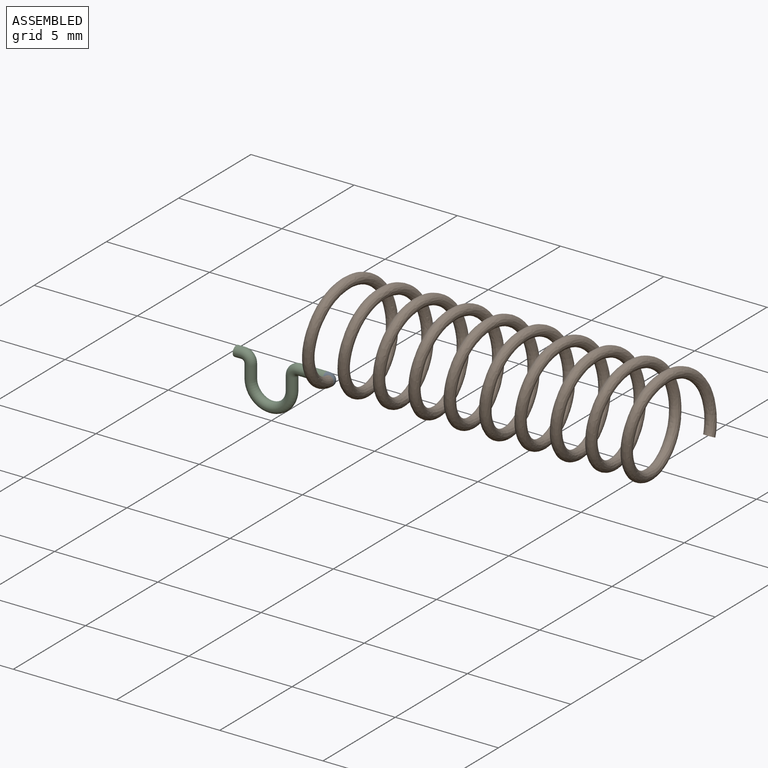
[diagram: assembled view]
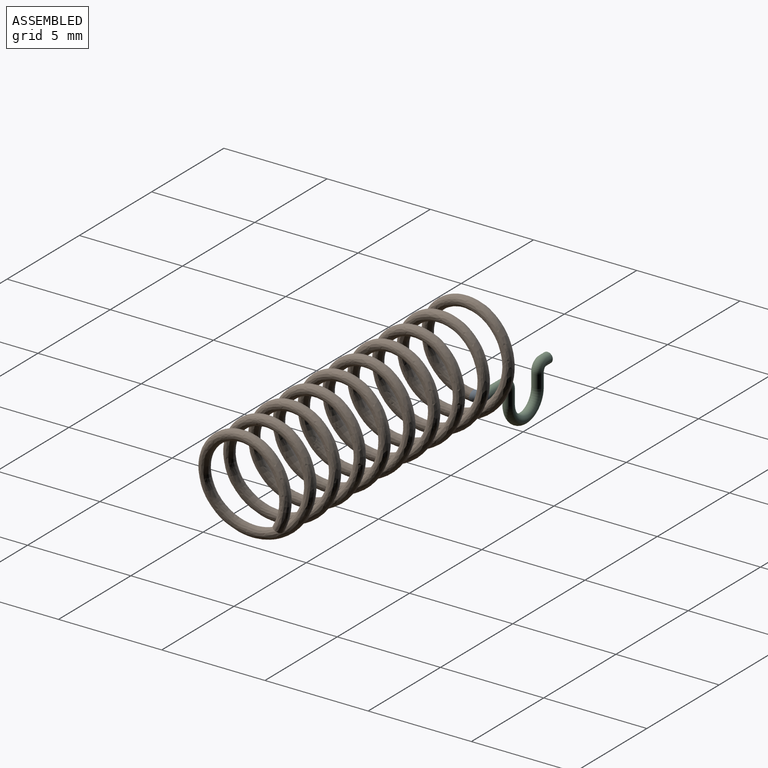
[diagram: assembled view, second angle]
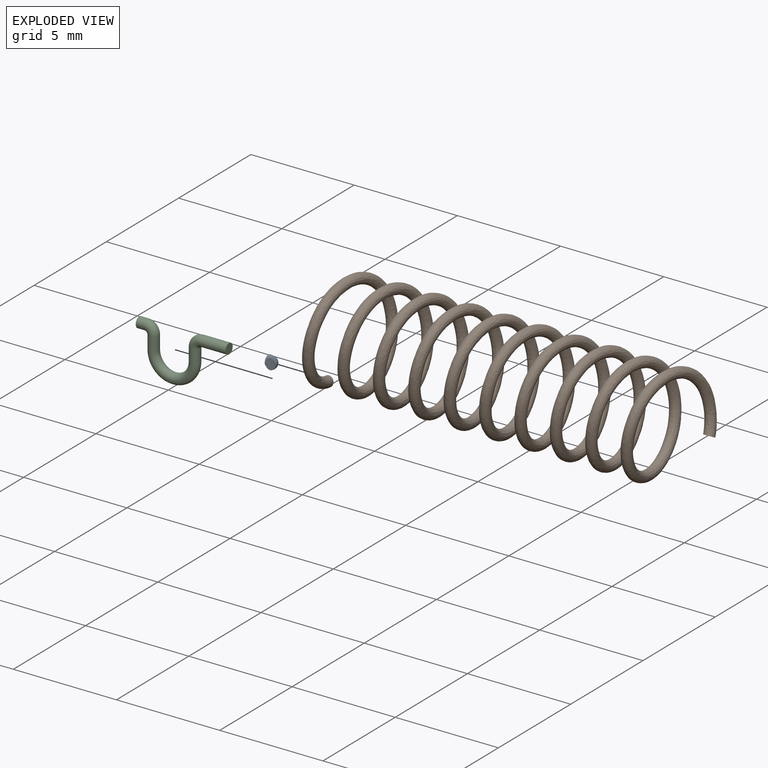
[diagram: exploded view]
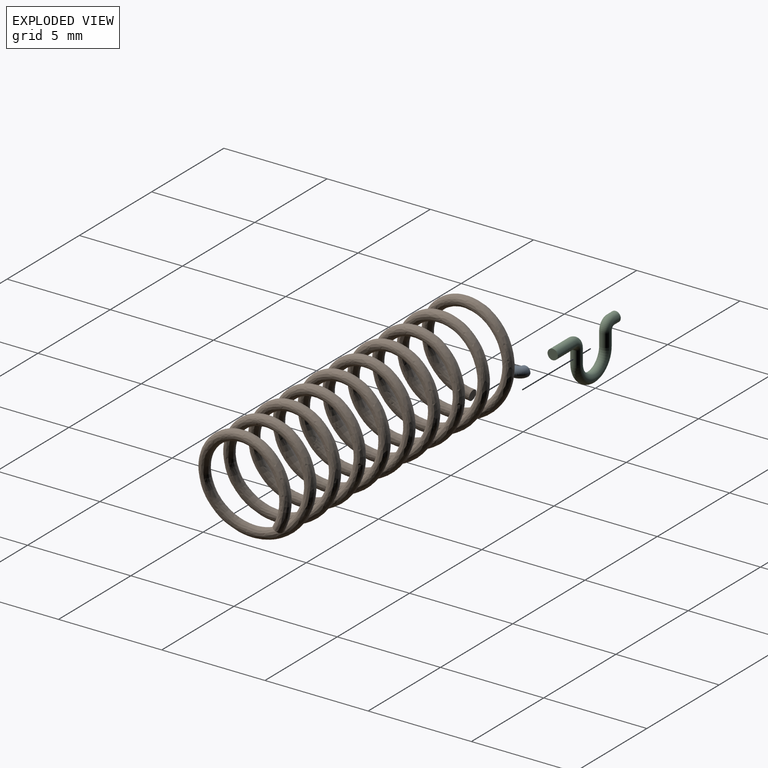
[diagram: exploded view, second angle]
ASSEMBLY  parts=3 mates=2
PART A: 3 faces, bbox 0.6x0.5x0.6 mm
  f0: plane 0.5x0.5mm, normal (0,0,1), area 0.2mm2, adj f1
  f1: torus R=0.35mm, axis (0,-1,0), area 0.9mm2, adj f0,f2
  f2: plane 0.5x0.5mm, normal (-1,0,0), area 0.2mm2, adj f1
PART B: 3 faces, bbox 4.6x17.4x4.8 mm
  f0: plane 0.57x0.57mm, normal (0,0,-1), area 0.2mm2, adj f2
  f1: plane 0.58x0.56mm, normal (0.95,0,0.31), area 0.2mm2, adj f2
  f2: bspline ~17.3x4.75mm, area 218mm2, adj f0,f1
PART C: 9 faces, bbox 4.4x0.5x2.7 mm
  f0: plane 0.5x0.5mm, normal (-1,0,0), area 0.2mm2, adj f1
  f1: cylinder r=0.25mm len=0.5mm, axis (1,0,0), area 0.5mm2, adj f0,f2
  f2: torus R=0.35mm, axis (0,1,0), area 0.9mm2, adj f1,f3
  f3: cylinder r=0.25mm len=0.65mm, axis (0,0,-1), area 1mm2, adj f2,f4
  f4: torus R=1mm, axis (0,-1,0), area 4.9mm2, adj f3,f5
  f5: cylinder r=0.25mm len=0.65mm, axis (0,0,1), area 1mm2, adj f4,f6
  f6: torus R=0.35mm, axis (0,1,0), area 0.9mm2, adj f5,f7
  f7: cylinder r=0.25mm len=1.3mm, axis (1,0,0), area 2mm2, adj f6,f8
  f8: plane 0.5x0.5mm, normal (1,0,0), area 0.2mm2, adj f7
PLACE A rot(axis=(1,0,0),81deg) t=(0,0.25,0.21)mm
PLACE B rot(axis=(0.54,0.54,-0.64),114.9deg) t=(3,0.01,2.53)mm
PLACE C at identity fixed
MATE fastened C.f1 <-> A.f2  axis (1,0,0) through (2.65,0,0.25)mm
MATE fastened A.f0 <-> B.f0  axis (0,-0.99,0.16) through (3,-0.35,0.3)mm
